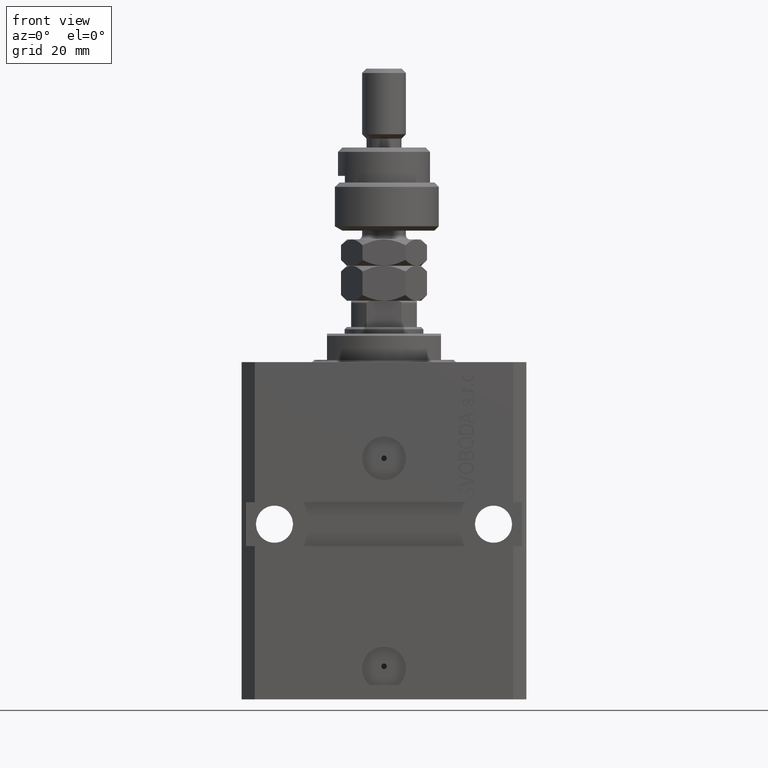
[diagram: clean part render]
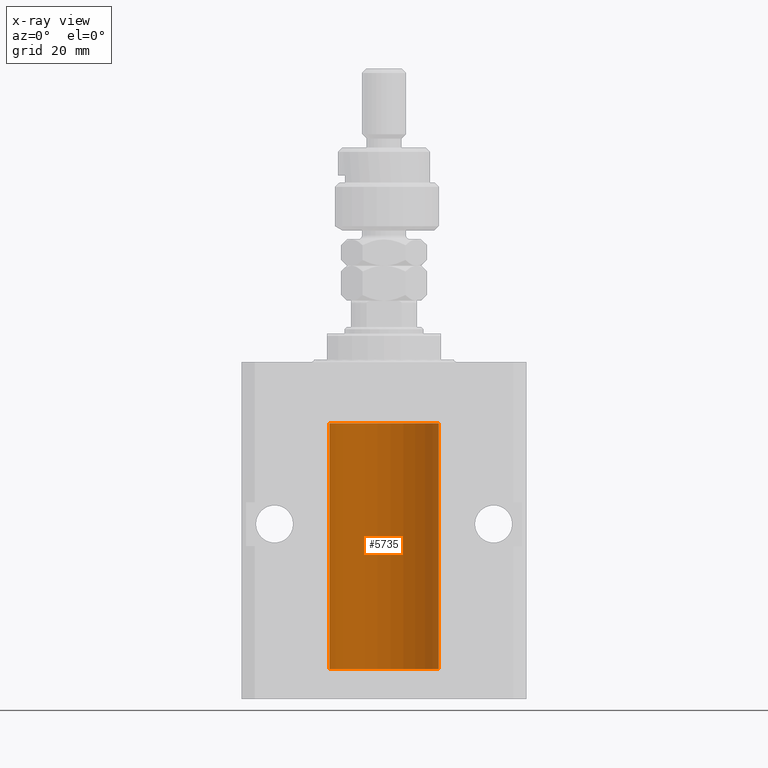
[diagram: x-ray — body ghosted, one internal face saturated and labeled with its STEP entity id]
A machine part, front view, then the same camera in x-ray: the body is ghosted and one INTERNAL B-rep face — a face not visible from any outside direction — is saturated and labeled: STEP entity #5735.
In plain terms, the highlighted cylindrical surface (partial cylindrical patch) has radius 12.5 mm, axis along (0, 0, 1).
Its self-contained STEP definition (entity closure, byte-faithful):
#2075 = VECTOR ( 'NONE', #23067, 1000.000000000000000 ) ;
#3394 = DIRECTION ( 'NONE',  ( 1.000000000000000000, 0.000000000000000000, 0.000000000000000000 ) ) ;
#3397 = CARTESIAN_POINT ( 'NONE',  ( -12.49999999999999645, 0.08260426088728485550, -64.37499999999998579 ) ) ;
#3641 = CARTESIAN_POINT ( 'NONE',  ( -12.49011732893843885, 0.5003763274120245352, -65.38348111289289477 ) ) ;
#3799 = LINE ( 'NONE', #49537, #32900 ) ;
#4045 = DIRECTION ( 'NONE',  ( -0.000000000000000000, -0.000000000000000000, 1.000000000000000000 ) ) ;
#4049 = CARTESIAN_POINT ( 'NONE',  ( -12.49011732893843529, 0.5003763274120274218, -22.38348111289287701 ) ) ;
#4708 = ORIENTED_EDGE ( 'NONE', *, *, #42649, .F. ) ;
#5276 = CARTESIAN_POINT ( 'NONE',  ( 0.000000000000000000, 0.000000000000000000, -13.99999999999999822 ) ) ;
#5398 = EDGE_CURVE ( 'NONE', #36125, #15316, #48560, .T. ) ;
#5735 = ADVANCED_FACE ( 'NONE', ( #7800 ), #14904, .F. ) ;
#7151 = CARTESIAN_POINT ( 'NONE',  ( 12.50000000000000000, 0.000000000000000000, -13.99999999999999822 ) ) ;
#7544 = CARTESIAN_POINT ( 'NONE',  ( 0.000000000000000000, 0.000000000000000000, -70.09999999999999432 ) ) ;
#7592 = CARTESIAN_POINT ( 'NONE',  ( -12.50000000000000000, 0.08260426088729219685, -21.37500000000000000 ) ) ;
#7678 = CARTESIAN_POINT ( 'NONE',  ( -12.50000000000000000, -2.089494013101375120E-17, -21.37499999999999645 ) ) ;
#7800 = FACE_OUTER_BOUND ( 'NONE', #17699, .T. ) ;
#7849 = CARTESIAN_POINT ( 'NONE',  ( -12.50000000000000000, -2.089494013101375120E-17, -21.37499999999999645 ) ) ;
#8594 = CARTESIAN_POINT ( 'NONE',  ( -12.49999999999999289, 0.1631761135151241215, -22.62499999999984013 ) ) ;
#8603 = AXIS2_PLACEMENT_3D ( 'NONE', #5276, #33057, #40898 ) ;
#11146 = CARTESIAN_POINT ( 'NONE',  ( -12.48520330846397819, 0.6088355886774127201, -22.16325431852561323 ) ) ;
#11234 = CARTESIAN_POINT ( 'NONE',  ( -12.50000000000017941, 3.883381774819353300E-13, -65.62500000000359535 ) ) ;
#12251 = ORIENTED_EDGE ( 'NONE', *, *, #23200, .T. ) ;
#14904 = CYLINDRICAL_SURFACE ( 'NONE', #44665, 12.50000000000000000 ) ;
#14951 = CARTESIAN_POINT ( 'NONE',  ( -12.49422197749724006, 0.3843754434364375916, -21.50047099568095277 ) ) ;
#15258 = VERTEX_POINT ( 'NONE', #28898 ) ;
#15293 = CARTESIAN_POINT ( 'NONE',  ( -12.49422197749724361, 0.3843754434364307082, -64.50047099568097053 ) ) ;
#15316 = VERTEX_POINT ( 'NONE', #7151 ) ;
#16034 = EDGE_CURVE ( 'NONE', #36125, #42000, #23834, .T. ) ;
#16125 = VERTEX_POINT ( 'NONE', #7678 ) ;
#17499 = VERTEX_POINT ( 'NONE', #42185 ) ;
#17699 = EDGE_LOOP ( 'NONE', ( #43187, #39844, #28369, #12251, #25734, #37030, #4708, #41046 ) ) ;
#18093 = CARTESIAN_POINT ( 'NONE',  ( 12.50000000000000000, 0.000000000000000000, -70.09999999999999432 ) ) ;
#18367 = CARTESIAN_POINT ( 'NONE',  ( -12.49625855304193500, 0.3150454781038046770, -64.45402800297485157 ) ) ;
#19058 = VECTOR ( 'NONE', #41227, 1000.000000000000000 ) ;
#22144 = CARTESIAN_POINT ( 'NONE',  ( -12.48810268015257741, 0.5573155909661293705, -64.67347410093867666 ) ) ;
#22395 = CARTESIAN_POINT ( 'NONE',  ( -12.48436376893640265, 0.6250290278979918623, -65.08132082824472775 ) ) ;
#22872 = CARTESIAN_POINT ( 'NONE',  ( -12.48520330846398174, 0.6088355886774118320, -65.16325431852561678 ) ) ;
#22985 = DIRECTION ( 'NONE',  ( 1.000000000000000000, 0.000000000000000000, 0.000000000000000000 ) ) ;
#23031 = CARTESIAN_POINT ( 'NONE',  ( -12.49625855304193678, 0.3150454781038042329, -21.45402800297484802 ) ) ;
#23067 = DIRECTION ( 'NONE',  ( -0.000000000000000000, -0.000000000000000000, 1.000000000000000000 ) ) ;
#23200 = EDGE_CURVE ( 'NONE', #15316, #34646, #36009, .T. ) ;
#23680 = B_SPLINE_CURVE_WITH_KNOTS ( 'NONE', 3,
 ( #38018, #3397, #45860, #18367, #15293, #22144, #37780, #22395, #22872, #26888, #3641, #26412, #45608, #11234 ),
 .UNSPECIFIED., .F., .F.,
 ( 4, 2, 2, 2, 2, 2, 4 ),
 ( 3.492495172846855184E-18, 0.0002442924852390798859, 0.0004885849704781563023, 0.0009771699409563386254, 0.001221462426195450658, 0.001465754911434562473, 0.001954339881912786538 ),
 .UNSPECIFIED. ) ;
#23834 = CIRCLE ( 'NONE', #48832, 12.50000000000000000 ) ;
#25734 = ORIENTED_EDGE ( 'NONE', *, *, #44814, .F. ) ;
#26412 = CARTESIAN_POINT ( 'NONE',  ( -12.49631005746706514, 0.3253680783018499389, -65.55856740465391397 ) ) ;
#26558 = CARTESIAN_POINT ( 'NONE',  ( -12.48809959379011403, 0.5462151254764975317, -22.31461370481611795 ) ) ;
#26888 = CARTESIAN_POINT ( 'NONE',  ( -12.48809959379011580, 0.5462151254764966435, -65.31461370481613926 ) ) ;
#28369 = ORIENTED_EDGE ( 'NONE', *, *, #5398, .T. ) ;
#28898 = CARTESIAN_POINT ( 'NONE',  ( -12.50000000000017941, 3.883381774819353300E-13, -65.62500000000359535 ) ) ;
#29372 = DIRECTION ( 'NONE',  ( -0.000000000000000000, -0.000000000000000000, 1.000000000000000000 ) ) ;
#30344 = CARTESIAN_POINT ( 'NONE',  ( -12.48436376893640443, 0.6250290278979917513, -22.08132082824473486 ) ) ;
#31510 = CARTESIAN_POINT ( 'NONE',  ( -12.50000000000000000, 1.530808498934191521E-15, -13.99999999999999822 ) ) ;
#32835 = CARTESIAN_POINT ( 'NONE',  ( -12.50000000000000000, -1.053276923642966949E-14, -64.37500000000000000 ) ) ;
#32900 = VECTOR ( 'NONE', #4045, 1000.000000000000000 ) ;
#33057 = DIRECTION ( 'NONE',  ( 0.000000000000000000, 0.000000000000000000, 1.000000000000000000 ) ) ;
#33436 = VERTEX_POINT ( 'NONE', #32835 ) ;
#34122 = CARTESIAN_POINT ( 'NONE',  ( -12.49915784441386890, 0.1636601911727947889, -21.39126818989430490 ) ) ;
#34611 = CARTESIAN_POINT ( 'NONE',  ( -12.48436813453758454, 0.6249418250771192618, -21.83668996798922635 ) ) ;
#34646 = VERTEX_POINT ( 'NONE', #31510 ) ;
#35858 = CARTESIAN_POINT ( 'NONE',  ( -12.50000000000017941, 3.883381646606358354E-13, -22.62500000000358824 ) ) ;
#36009 = CIRCLE ( 'NONE', #8603, 12.50000000000000000 ) ;
#36125 = VERTEX_POINT ( 'NONE', #18093 ) ;
#37028 = DIRECTION ( 'NONE',  ( 0.000000000000000000, 0.000000000000000000, 1.000000000000000000 ) ) ;
#37030 = ORIENTED_EDGE ( 'NONE', *, *, #46146, .T. ) ;
#37196 = CARTESIAN_POINT ( 'NONE',  ( -12.50000000000000000, 1.530808498934191521E-15, -70.09999999999999432 ) ) ;
#37780 = CARTESIAN_POINT ( 'NONE',  ( -12.48436813453758809, 0.6249418250771181516, -64.83668996798922990 ) ) ;
#38018 = CARTESIAN_POINT ( 'NONE',  ( -12.50000000000000000, -1.053276923642966949E-14, -64.37500000000000000 ) ) ;
#38419 = CARTESIAN_POINT ( 'NONE',  ( -12.48810268015257563, 0.5573155909661349217, -21.67347410093867666 ) ) ;
#39844 = ORIENTED_EDGE ( 'NONE', *, *, #16034, .F. ) ;
#40898 = DIRECTION ( 'NONE',  ( 1.000000000000000000, 0.000000000000000000, 0.000000000000000000 ) ) ;
#41046 = ORIENTED_EDGE ( 'NONE', *, *, #44162, .T. ) ;
#41059 = CARTESIAN_POINT ( 'NONE',  ( 0.000000000000000000, 0.000000000000000000, -70.09999999999999432 ) ) ;
#41227 = DIRECTION ( 'NONE',  ( -0.000000000000000000, -0.000000000000000000, 1.000000000000000000 ) ) ;
#42000 = VERTEX_POINT ( 'NONE', #45952 ) ;
#42185 = CARTESIAN_POINT ( 'NONE',  ( -12.50000000000017941, 3.883381646606358354E-13, -22.62500000000358824 ) ) ;
#42234 = CARTESIAN_POINT ( 'NONE',  ( -12.50000000000000000, 1.530808498934191521E-15, -70.09999999999999432 ) ) ;
#42649 = EDGE_CURVE ( 'NONE', #33436, #17499, #48303, .T. ) ;
#43187 = ORIENTED_EDGE ( 'NONE', *, *, #49790, .F. ) ;
#43457 = CARTESIAN_POINT ( 'NONE',  ( -12.49631005746706336, 0.3253680783018528255, -22.55856740465392463 ) ) ;
#44162 = EDGE_CURVE ( 'NONE', #33436, #15258, #23680, .T. ) ;
#44208 = VECTOR ( 'NONE', #29372, 1000.000000000000000 ) ;
#44665 = AXIS2_PLACEMENT_3D ( 'NONE', #7544, #49492, #22985 ) ;
#44814 = EDGE_CURVE ( 'NONE', #16125, #34646, #46286, .T. ) ;
#45051 = CARTESIAN_POINT ( 'NONE',  ( 12.50000000000000000, 0.000000000000000000, -70.09999999999999432 ) ) ;
#45302 = B_SPLINE_CURVE_WITH_KNOTS ( 'NONE', 3,
 ( #7849, #7592, #34122, #23031, #14951, #38419, #34611, #30344, #11146, #26558, #4049, #43457, #8594, #35858 ),
 .UNSPECIFIED., .F., .F.,
 ( 4, 2, 2, 2, 2, 2, 4 ),
 ( 2.030551168097110502E-20, 0.0002442924852390969078, 0.0004885849704781938157, 0.0009771699409563880650, 0.001221462426195485135, 0.001465754911434582423, 0.001954339881912776130 ),
 .UNSPECIFIED. ) ;
#45608 = CARTESIAN_POINT ( 'NONE',  ( -12.49999999999999822, 0.1631761135151225950, -65.62499999999985789 ) ) ;
#45860 = CARTESIAN_POINT ( 'NONE',  ( -12.49915784441386890, 0.1636601911727943726, -64.39126818989430490 ) ) ;
#45952 = CARTESIAN_POINT ( 'NONE',  ( -12.50000000000000000, 1.530808498934191521E-15, -70.09999999999999432 ) ) ;
#46146 = EDGE_CURVE ( 'NONE', #16125, #17499, #45302, .T. ) ;
#46286 = LINE ( 'NONE', #42234, #2075 ) ;
#48303 = LINE ( 'NONE', #37196, #19058 ) ;
#48560 = LINE ( 'NONE', #45051, #44208 ) ;
#48832 = AXIS2_PLACEMENT_3D ( 'NONE', #41059, #37028, #3394 ) ;
#49492 = DIRECTION ( 'NONE',  ( -0.000000000000000000, -0.000000000000000000, 1.000000000000000000 ) ) ;
#49537 = CARTESIAN_POINT ( 'NONE',  ( -12.50000000000000000, 1.530808498934191521E-15, -70.09999999999999432 ) ) ;
#49790 = EDGE_CURVE ( 'NONE', #42000, #15258, #3799, .T. ) ;